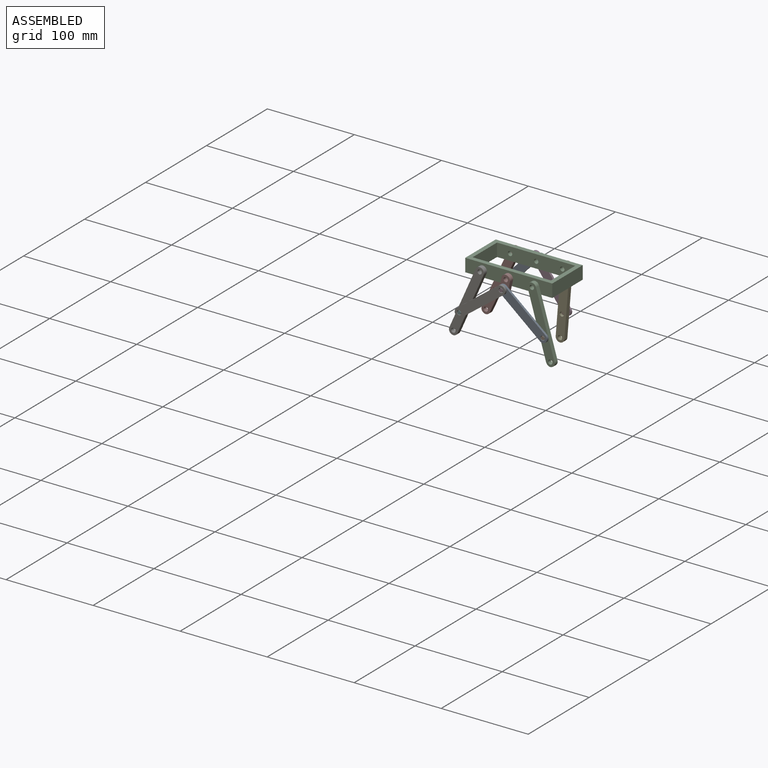
[diagram: assembled view]
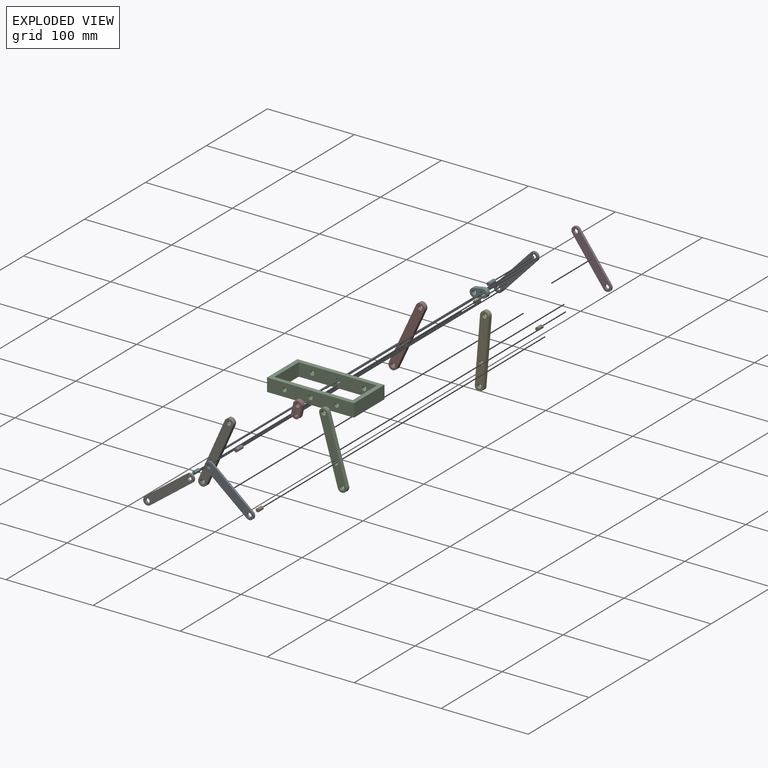
[diagram: exploded view]
GUIDED TOUR — MATED ASSEMBLY (Onshape document f0c2cba16f7986491a749965, AutoMate assembly f0c2cba16f7986491a749965_29a1b851d8dd8d99d053bbe2_6ed01dc44b8c0630210e8784_default)

This assembly has 17 components, labeled P0..P16 below (a component is one placed occurrence of a part; the same part can appear more than once), held together by 29 mates. A mate is a constraint between two components; its type names the relative motion it leaves free:
  CYLINDRICAL — leaves both rotation about and translation along the listed axis free,
  PARALLEL — keeps the two listed directions parallel,
  PLANAR — leaves sliding in the plane through the listed point (normal = the listed direction) and rotation about that normal free,
  REVOLUTE — leaves rotation about the listed axis free (a hinge).
Axis/direction vectors are unit vectors and 'through' points are millimeter coordinates, both in the assembly's world frame.

MATES
  1. CYLINDRICAL "圓柱 4": P13 <-> P6, axis (0.000, 1.000, 0.000) through (-46.83, -28.82, -48.36) mm
  2. REVOLUTE "轉動 3": P2 <-> P10, axis (0.000, -1.000, 0.000) through (33.30, -22.57, -2.59) mm
  3. CYLINDRICAL "圓柱 2": P3 <-> P6, axis (0.000, 1.000, 0.000) through (1.18, -27.57, -12.36) mm
  4. REVOLUTE "轉動 10": P15 <-> P2, axis (0.000, -1.000, 0.000) through (-26.70, 27.43, -2.59) mm
  5. CYLINDRICAL "圓柱 5": P11 <-> P16, axis (0.000, -1.000, 0.000) through (-6.56, 34.93, -4.27) mm
  6. CYLINDRICAL "圓柱 3": P1 <-> P8, axis (0.000, 1.000, 0.000) through (47.46, -26.32, -50.54) mm
  7. REVOLUTE "轉動 8": P16 <-> P5, axis (0.000, -1.000, 0.000) through (-6.56, 32.43, -4.27) mm
  8. REVOLUTE "轉動 11": P4 <-> P2, axis (0.000, -1.000, 0.000) through (33.30, 27.43, -2.59) mm
  9. CYLINDRICAL "圓柱 8": P12 <-> P16, axis (0.000, 1.000, 0.000) through (-47.64, 31.18, -47.99) mm
  10. PARALLEL "平行 1": P3 <-> P6, direction (0.000, -1.000, 0.000) through (1.18, -32.57, -12.36) mm
  11. REVOLUTE "轉動 12": P15 <-> P16, axis (0.000, 1.000, 0.000) through (-47.64, 32.43, -47.99) mm
  12. PLANAR "平面 1": P11 <-> P16, direction (0.000, -1.000, 0.000) through (-6.56, 34.93, -4.27) mm
  13. CYLINDRICAL "圓柱 1": P6 <-> P14, axis (0.000, 1.000, 0.000) through (-46.83, -30.07, -48.36) mm
  14. CYLINDRICAL "圓柱 7": P0 <-> P11, axis (0.000, 1.000, 0.000) through (-6.56, 32.43, -4.27) mm
  15. REVOLUTE "轉動 2": P7 <-> P8, axis (0.000, -1.000, 0.000) through (1.18, -27.57, -12.36) mm
  16. PLANAR "平面 5": P13 <-> P6, direction (0.000, 1.000, 0.000) through (-46.83, -32.57, -48.36) mm
  17. PLANAR "平面 2": P0 <-> P11, direction (0.000, 1.000, 0.000) through (-6.56, 37.43, -4.27) mm
  18. PARALLEL "平行 3": P13 <-> P6, direction (0.000, -1.000, 0.000) through (-46.83, -32.57, -48.36) mm
  19. REVOLUTE "轉動 4": P10 <-> P8, axis (0.000, -1.000, 0.000) through (47.46, -27.57, -50.54) mm
  20. REVOLUTE "轉動 6": P6 <-> P8, axis (0.000, 1.000, 0.000) through (1.18, -30.07, -12.36) mm
  21. PLANAR "平面 3": P12 <-> P16, direction (0.000, 1.000, 0.000) through (-47.64, 34.93, -47.99) mm
  22. PARALLEL "平行 2": P1 <-> P8, direction (0.000, -1.000, 0.000) through (47.46, -30.07, -50.54) mm
  23. PLANAR "平面 4": P9 <-> P11, direction (0.000, 1.000, 0.000) through (29.23, 37.43, -52.42) mm
  24. REVOLUTE "轉動 1": P7 <-> P2, axis (0.000, 1.000, 0.000) through (3.30, -22.57, -2.59) mm
  25. PARALLEL "平行 4": P11 <-> P16, direction (0.000, -1.000, 0.000) through (-6.56, 34.93, -4.27) mm
  26. CYLINDRICAL "圓柱 9": P9 <-> P11, axis (0.000, 1.000, 0.000) through (29.23, 33.68, -52.42) mm
  27. REVOLUTE "轉動 7": P5 <-> P2, axis (0.000, -1.000, 0.000) through (3.30, 27.43, -2.59) mm
  28. REVOLUTE "轉動 5": P2 <-> P14, axis (0.000, -1.000, 0.000) through (-26.70, -22.57, -2.59) mm
  29. CYLINDRICAL "圓柱 6": P11 <-> P4, axis (0.000, 1.000, 0.000) through (29.23, 34.93, -52.42) mm

ASSEMBLY ORDER
  1. P16 — the base component [order verified]
  2. P11 [order verified]
  3. P0 [order verified]
  4. P5 [order verified]
  5. P12 [order verified]
  6. P4 [order verified]
  7. P15 [order verified]
  8. P2 [order verified]
  9. P7 [order verified]
  10. P10 [order verified]
  11. P14 [order verified]
  12. P8 [order verified]
  13. P1 [order verified]
  14. P6 [order verified]
  15. P3 [order verified]
  16. P13 [order verified]
  17. P9 [order verified]
Order-tag legend:
  [order verified] — this step's position reverses a verified removal order: the component was checked to insert without passing through the ones already placed.

Of the 17 components, 1 carries the full construction recipe — the FeatureScript program that regenerates the part's solid from scratch; the rest are supplied as boundary geometry only.
Because this assembly has more than 12 components, the tour below covers the 12 most significant ones individually (every recipe-attached component first, then the largest by part volume), in assembly order; the remaining 5 are summarized together in a grouped section at the end.
Each toured component is shown spotlighted twice — in the assembled view, then in the exploded view, where a leader line traces a displaced component back to its assembled socket (saturated green if recipe-attached, orange if geometry-only; every other component desaturated gray) — followed by its recipe or geometry summary and the mates that hold it.
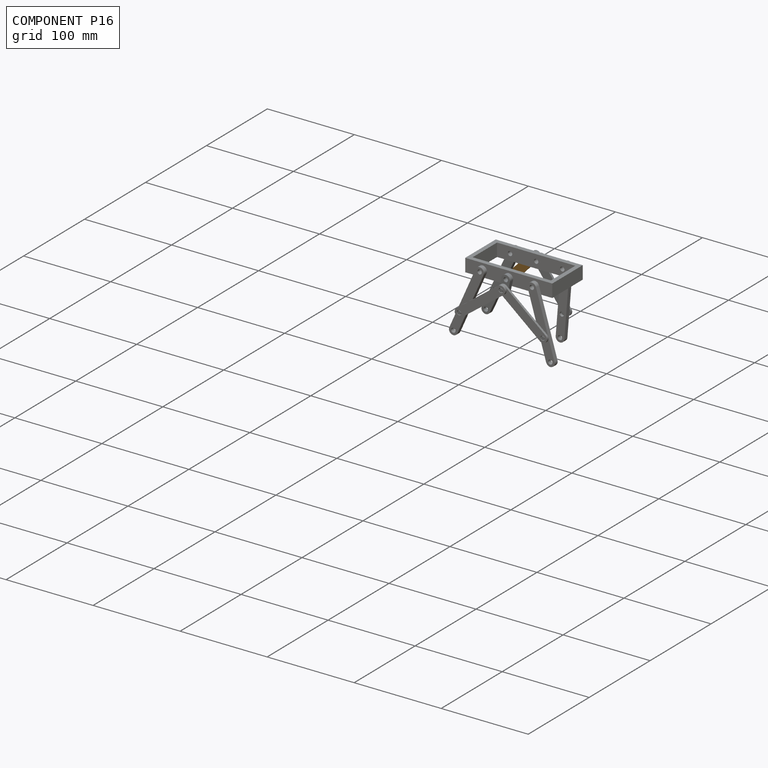
[diagram: component P16 — assembled]
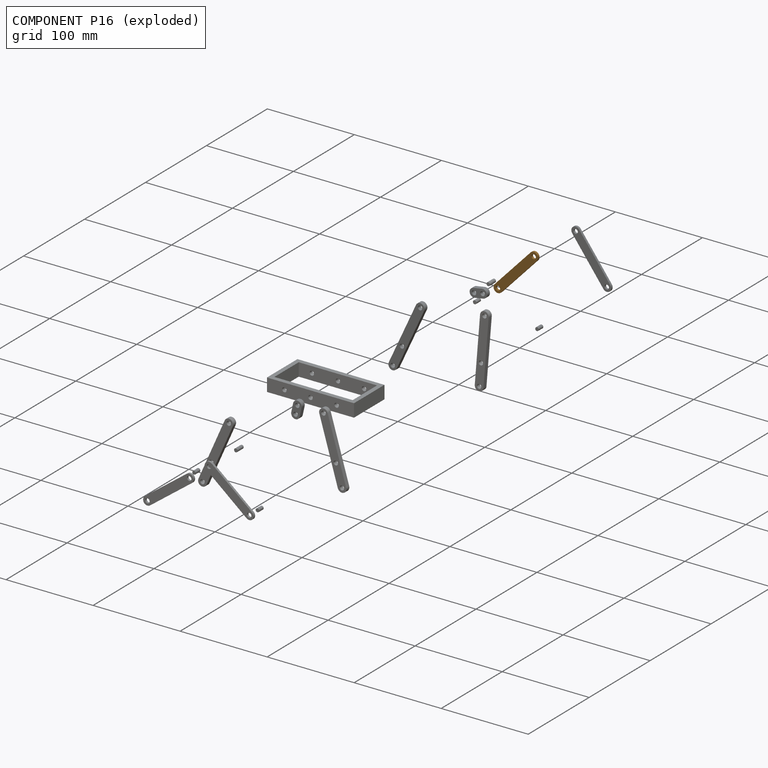
[diagram: component P16 — exploded]
COMPONENT P16 — geometry summary (no construction recipe available for this part):
  bounding box: 70.0 x 10.0 x 2.5 mm
  B-rep topology: 1 solid, 8 faces, 36 edges
  volume: 1598 mm^3 (91% of its bounding box)
  symmetry: 2-fold rotationally symmetric about the x axis; 2-fold rotationally symmetric about the y axis; 2-fold rotationally symmetric about the z axis; mirror-symmetric across its x mid-plane, y mid-plane, z mid-plane
Held by: CYLINDRICAL mate "圓柱 5" to P11; REVOLUTE mate "轉動 8" to P5; CYLINDRICAL mate "圓柱 8" to P12; REVOLUTE mate "轉動 12" to P15; PLANAR mate "平面 1" to P11; PLANAR mate "平面 3" to P12; PARALLEL mate "平行 4" to P11.
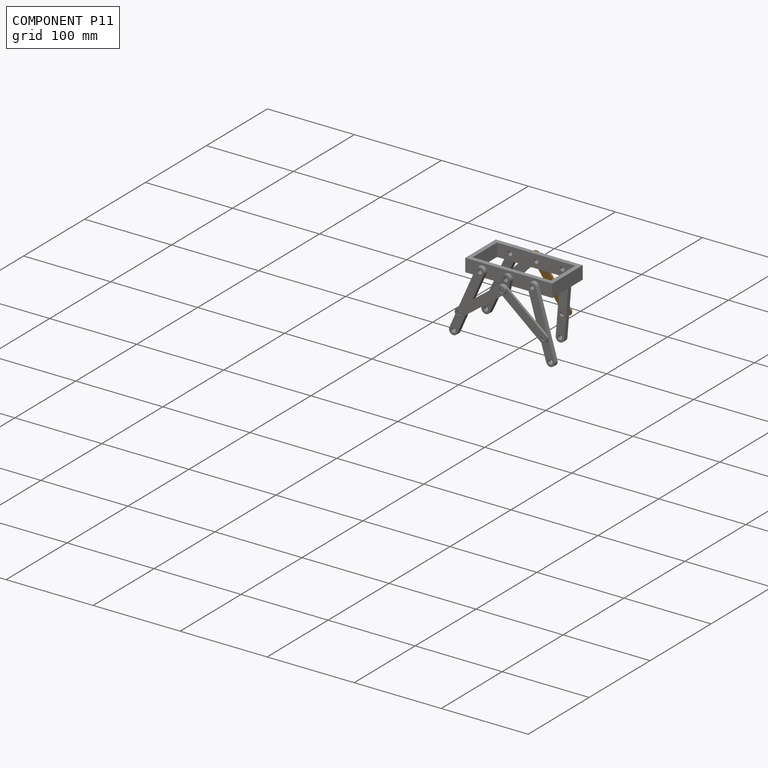
[diagram: component P11 — assembled]
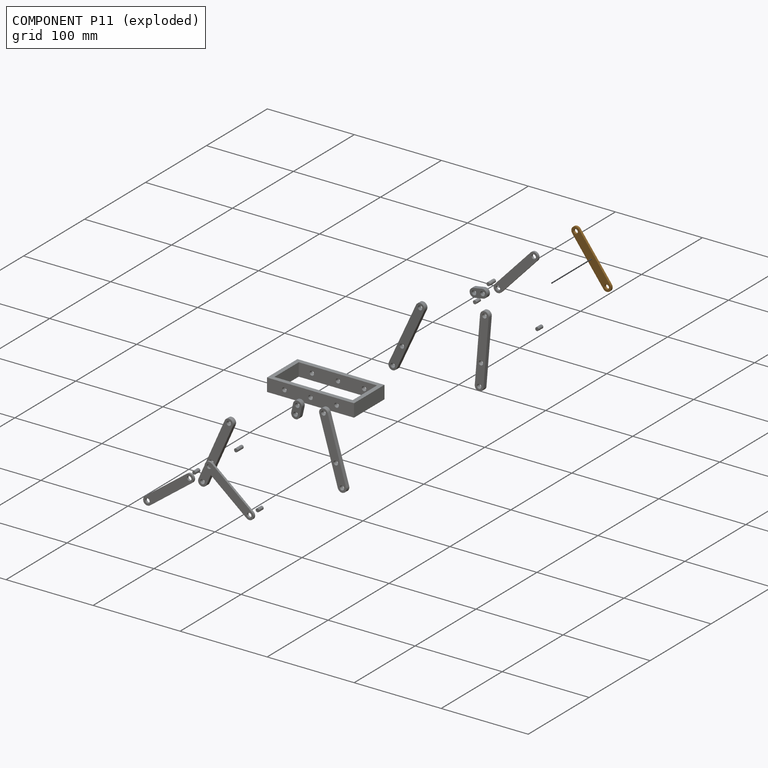
[diagram: component P11 — exploded]
COMPONENT P11 — geometry summary (no construction recipe available for this part):
  bounding box: 70.0 x 10.0 x 2.5 mm
  B-rep topology: 1 solid, 8 faces, 36 edges
  volume: 1598 mm^3 (91% of its bounding box)
  symmetry: 2-fold rotationally symmetric about the x axis; 2-fold rotationally symmetric about the y axis; 2-fold rotationally symmetric about the z axis; mirror-symmetric across its x mid-plane, y mid-plane, z mid-plane
Held by: CYLINDRICAL mate "圓柱 5" to P16; PLANAR mate "平面 1" to P16; CYLINDRICAL mate "圓柱 7" to P0; PLANAR mate "平面 2" to P0; PLANAR mate "平面 4" to P9; PARALLEL mate "平行 4" to P16; CYLINDRICAL mate "圓柱 9" to P9; CYLINDRICAL mate "圓柱 6" to P4.
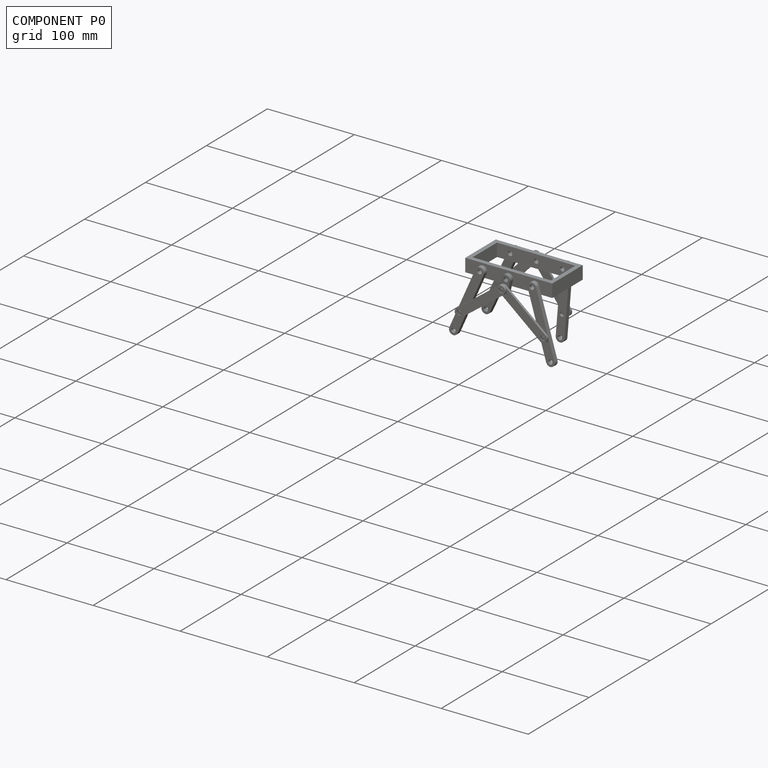
[diagram: component P0 — assembled]
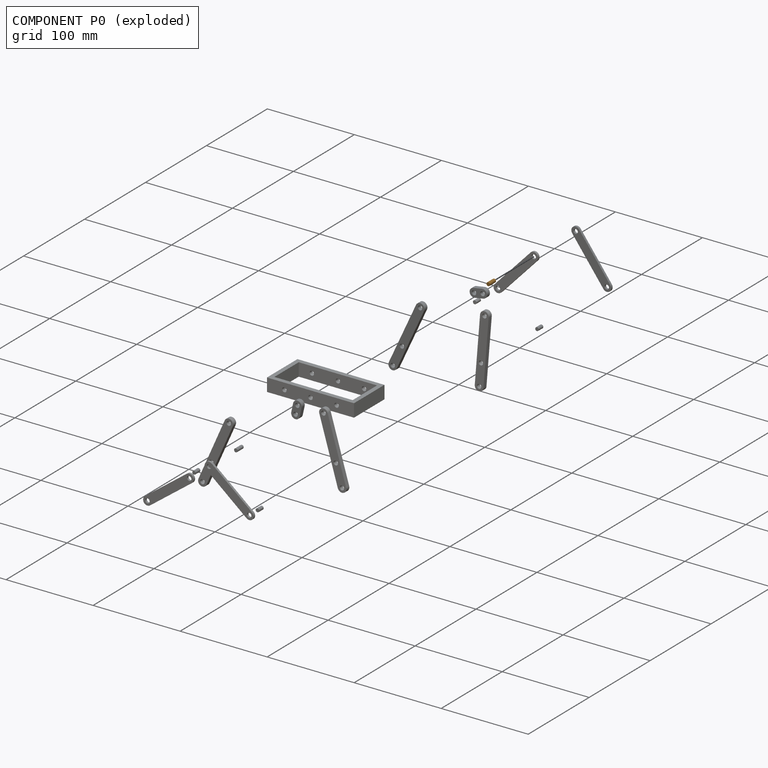
[diagram: component P0 — exploded]
COMPONENT P0 — geometry summary (no construction recipe available for this part):
  bounding box: 10.0 x 4.0 x 4.0 mm
  B-rep topology: 1 solid, 3 faces, 6 edges
  volume: 126 mm^3 (79% of its bounding box)
  symmetry: 2-fold rotationally symmetric about the x axis; revolution-symmetric about the y axis through its bounding-box center; 2-fold rotationally symmetric about the z axis; mirror-symmetric across its x mid-plane, y mid-plane, z mid-plane
Held by: CYLINDRICAL mate "圓柱 7" to P11; PLANAR mate "平面 2" to P11.
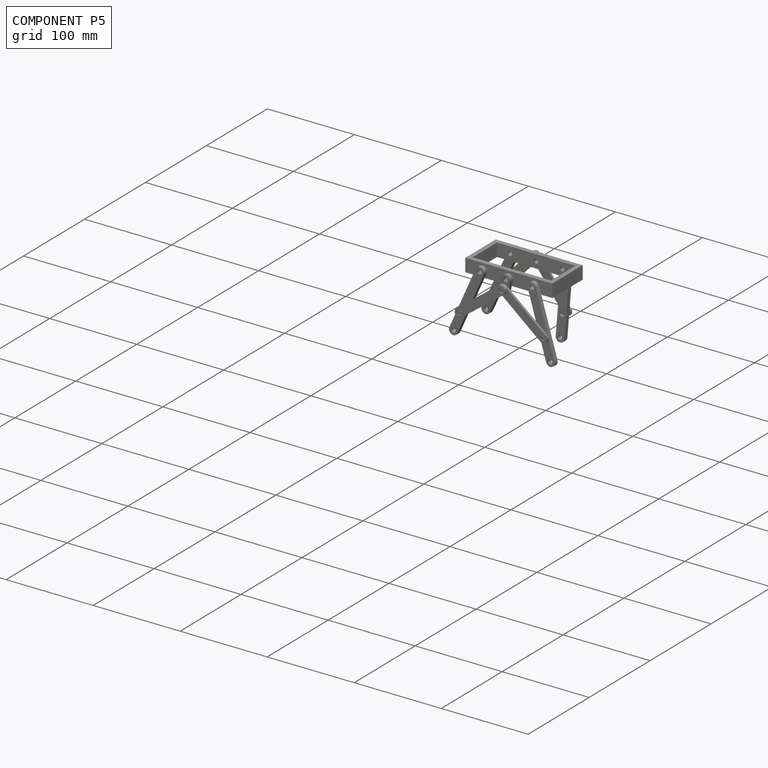
[diagram: component P5 — assembled]
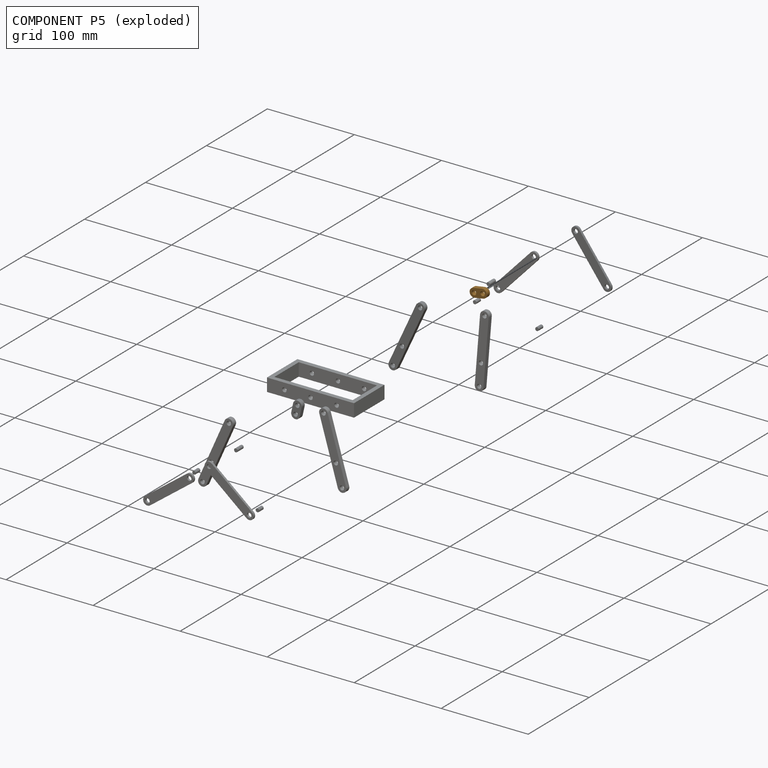
[diagram: component P5 — exploded]
COMPONENT P5 — geometry summary (no construction recipe available for this part):
  bounding box: 20.0 x 10.0 x 5.0 mm
  B-rep topology: 1 solid, 8 faces, 36 edges
  volume: 696 mm^3 (70% of its bounding box)
  symmetry: 2-fold rotationally symmetric about the x axis; 2-fold rotationally symmetric about the y axis; 2-fold rotationally symmetric about the z axis; mirror-symmetric across its x mid-plane, y mid-plane, z mid-plane
Held by: REVOLUTE mate "轉動 8" to P16; REVOLUTE mate "轉動 7" to P2.
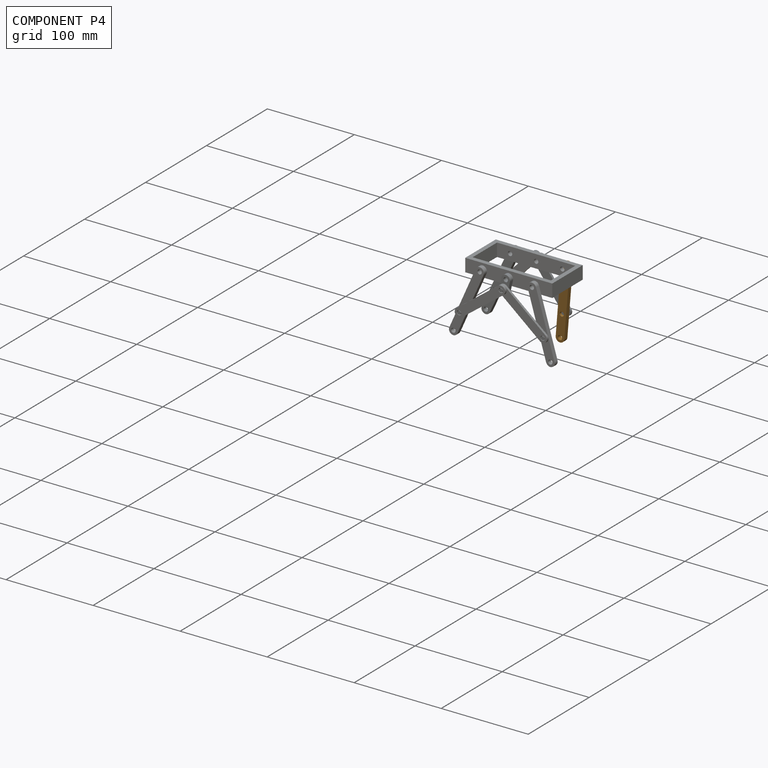
[diagram: component P4 — assembled]
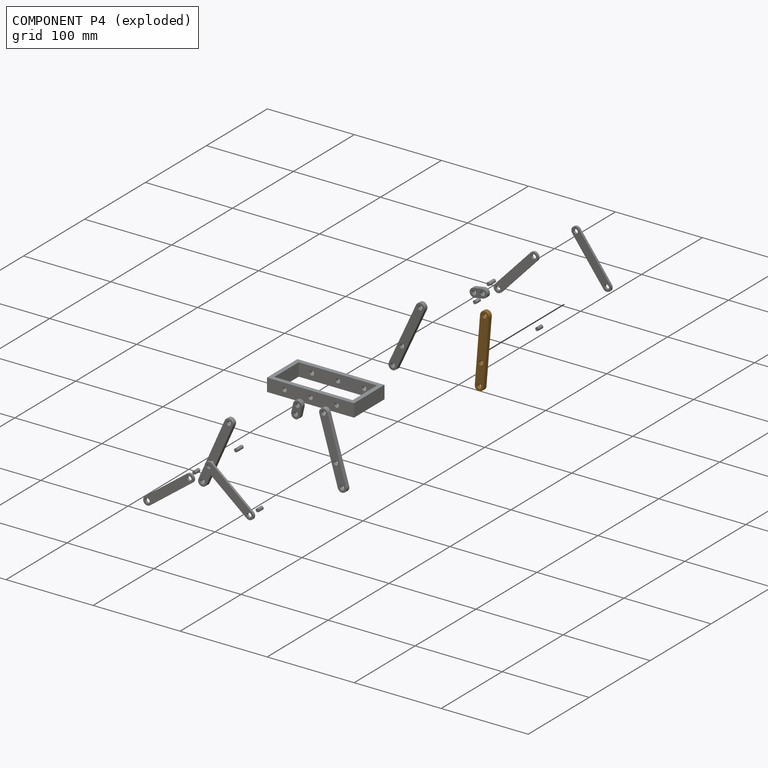
[diagram: component P4 — exploded]
COMPONENT P4 — geometry summary (no construction recipe available for this part):
  bounding box: 85.0 x 10.0 x 5.0 mm
  B-rep topology: 1 solid, 9 faces, 42 edges
  volume: 3848 mm^3 (91% of its bounding box)
  symmetry: 2-fold rotationally symmetric about the z axis; mirror-symmetric across its x mid-plane, y mid-plane
Held by: REVOLUTE mate "轉動 11" to P2; CYLINDRICAL mate "圓柱 6" to P11.
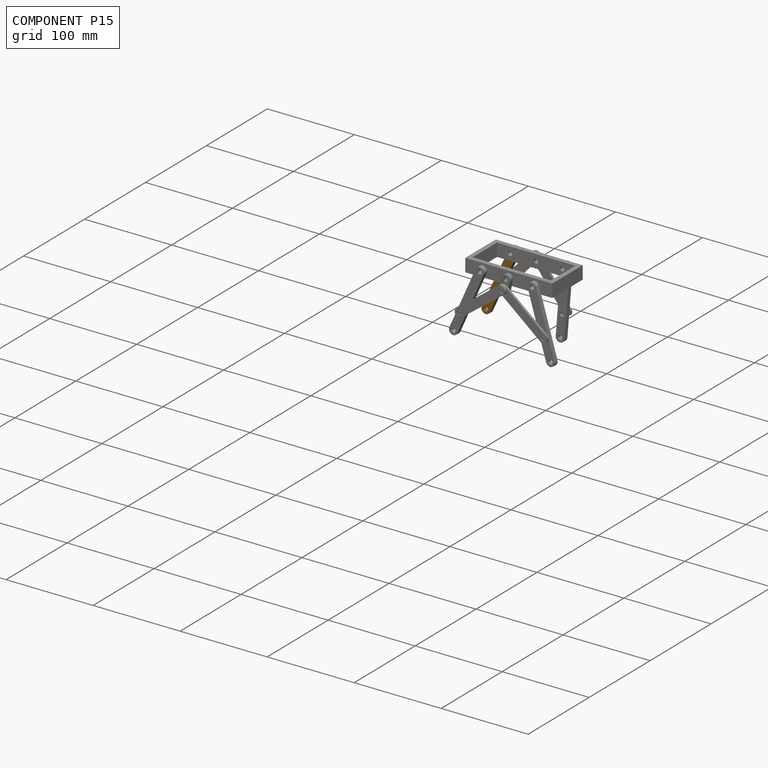
[diagram: component P15 — assembled]
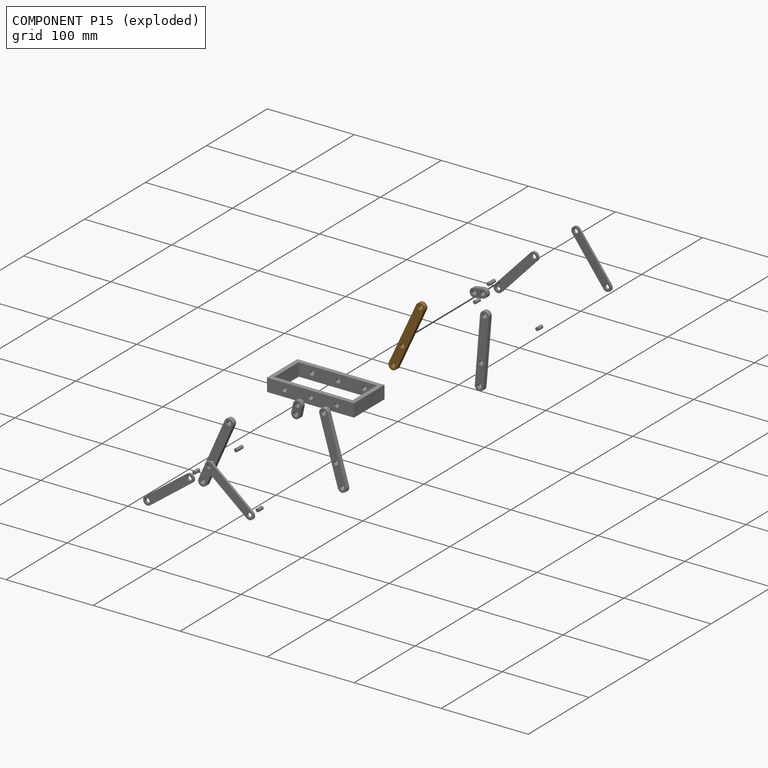
[diagram: component P15 — exploded]
COMPONENT P15 — geometry summary (no construction recipe available for this part):
  bounding box: 85.0 x 10.0 x 5.0 mm
  B-rep topology: 1 solid, 9 faces, 42 edges
  volume: 3848 mm^3 (91% of its bounding box)
  symmetry: 2-fold rotationally symmetric about the z axis; mirror-symmetric across its x mid-plane, y mid-plane
Held by: REVOLUTE mate "轉動 10" to P2; REVOLUTE mate "轉動 12" to P16.
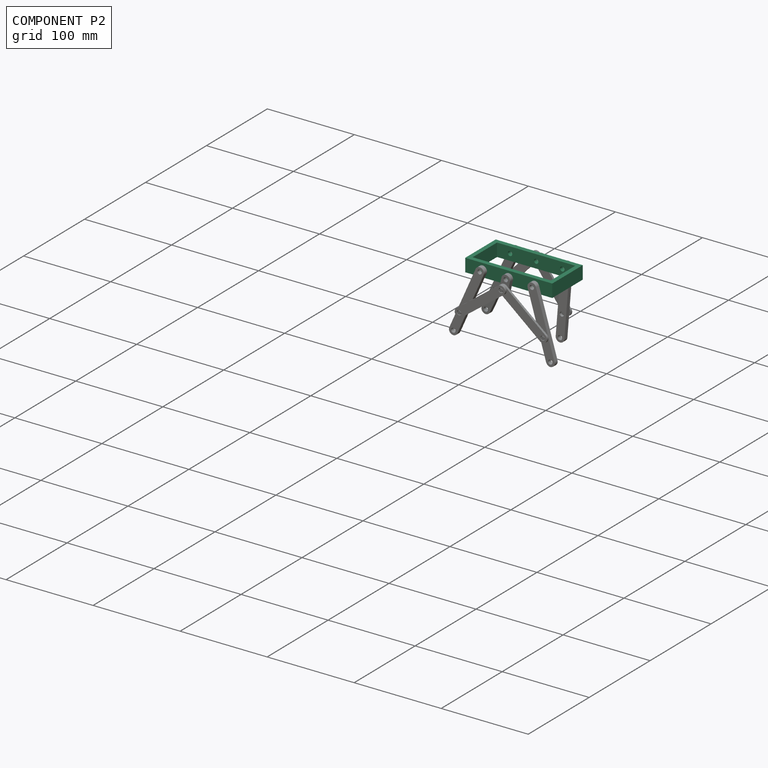
[diagram: component P2 — assembled]
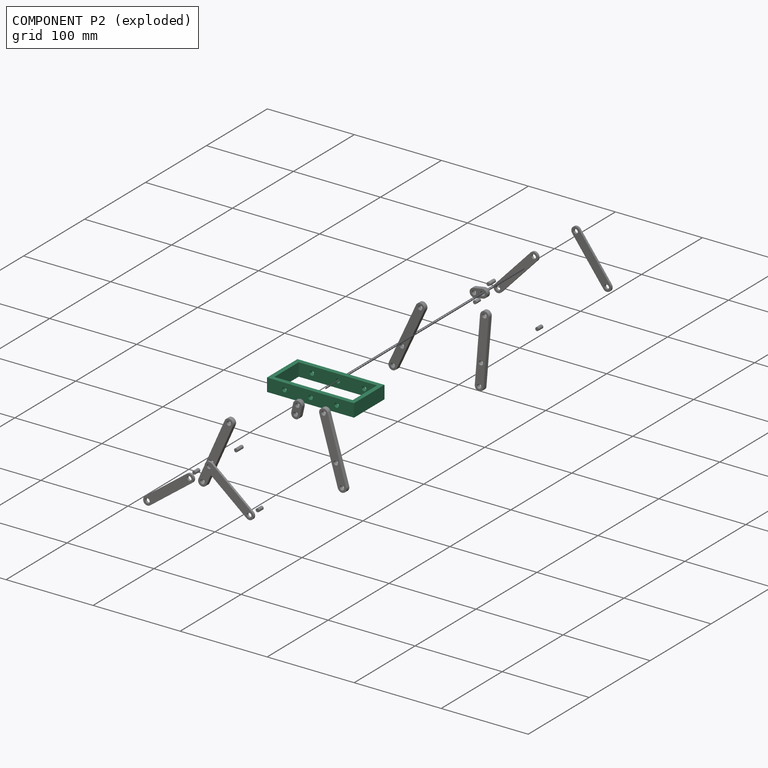
[diagram: component P2 — exploded]
COMPONENT P2 — recipe-attached (CADFS 00717499, mesh-verified: the recipe's output STEP matches this component's geometry to below the mesh-comparison resolution (tessellation chordal tolerance ~0.169 mm)).
Held by: REVOLUTE mate "轉動 3" to P10; REVOLUTE mate "轉動 10" to P15; REVOLUTE mate "轉動 11" to P4; REVOLUTE mate "轉動 1" to P7; REVOLUTE mate "轉動 7" to P5; REVOLUTE mate "轉動 5" to P14.
Construction recipe (FeatureScript — the CAD program that rebuilds this solid; sketch coordinates are in the units given by the * unit suffixes, e.g. mm):

FeatureScript 1576;
import(path : "onshape/std/geometry.fs", version : "1576.0");
import(path : "onshape/std/common.fs", version : "1576.0");
const mm = millimeter;
const VERTEX = EntityType.VERTEX;
const EDGE = EntityType.EDGE;
const FACE = EntityType.FACE;
const BODY = EntityType.BODY;
function v(x, y){return vector(x, y);}
function OD(order){return orderDisambiguation(order);}
function OSD(set){return originalSetDisambiguation(set);}
function TD(topology){return topologyDisambiguation(topology);}
function TDD(query){return trueDependencyDisambiguation(query);}
function sQuery(a, b, c) {return sketchEntityQuery(a, b, c);}

annotation { "Feature Type Name" : "Feature", "Feature Type Description" : "" }
export const myFeature = defineFeature(function(context is Context, id is Id, definition is map)
    precondition{}
    {
        {
            var Q0;
            Q0=qCreatedBy(makeId("Top.planeOp"),FACE);
            var sketch = newSketch(context, id + "F0", { "sketchPlane" : qUnion([Q0])});
            skLineSegment(sketch, "E0.bottom", {"start": v(-50, 25) * mm, "end": v(50, 25) * mm});
            skLineSegment(sketch, "E0.top", {"start": v(-50, -25) * mm, "end": v(50, -25) * mm});
            skLineSegment(sketch, "E0.left", {"start": v(-50, 25) * mm, "end": v(-50, -25) * mm});
            skLineSegment(sketch, "E0.right", {"start": v(50, 25) * mm, "end": v(50, -25) * mm});
            skPoint(sketch, "E0.middle", {"position": v(0, 0) * mm});
            skLineSegment(sketch, "E1.bottom", {"start": v(-45, 20) * mm, "end": v(45, 20) * mm});
            skLineSegment(sketch, "E1.top", {"start": v(-45, -20) * mm, "end": v(45, -20) * mm});
            skLineSegment(sketch, "E1.left", {"start": v(-45, 20) * mm, "end": v(-45, -20) * mm});
            skLineSegment(sketch, "E1.right", {"start": v(45, 20) * mm, "end": v(45, -20) * mm});
            skSolve(sketch);
        }
        {
            var Q0;
            Q0 = qSketchRegion(id + "F0", true);
            extrude(context, id + "F1", {"entities" : qUnion([Q0]), "depth" : 15 * mm, "offsetDistance" : 25 * mm, "symmetric" : true});
        }
        {
            var Q0;
            Q0=qCreatedBy(makeId("Front.planeOp"),FACE);
            var sketch = newSketch(context, id + "F2", { "sketchPlane" : qUnion([Q0])});
            skCircle(sketch, "E2", {"center": v(0, 0) * mm, "radius": 2.5 * mm});
            skCircle(sketch, "E3", {"center": v(-30, 0) * mm, "radius": 2.5 * mm});
            skCircle(sketch, "E4", {"center": v(30, 0) * mm, "radius": 2.5 * mm});
            skLineSegment(sketch, "E5", {"start": v(0, 7.5) * mm, "end": v(0, -7.5) * mm, "construction": true});
            skSolve(sketch);
        }
        {
            var Q0;
            Q0 = qSketchRegion(id + "F2", true);
            extrude(context, id + "F3", {"entities" : qUnion([Q0]), "operationType" : NewBodyOperationType.REMOVE, "oppositeDirection" : true, "depth" : 50 * mm, "offsetDistance" : 25 * mm, "symmetric" : true});
        }
    });
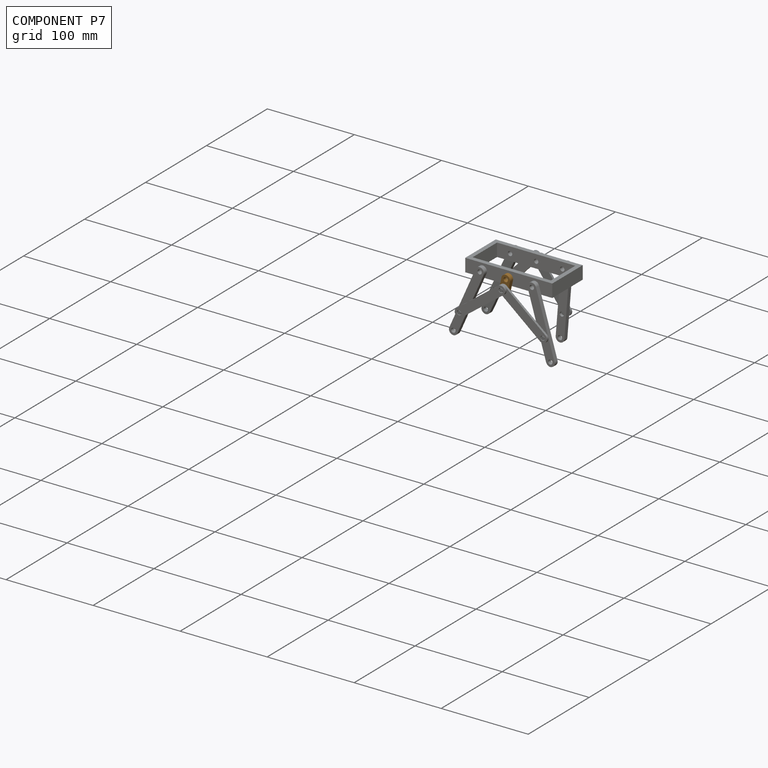
[diagram: component P7 — assembled]
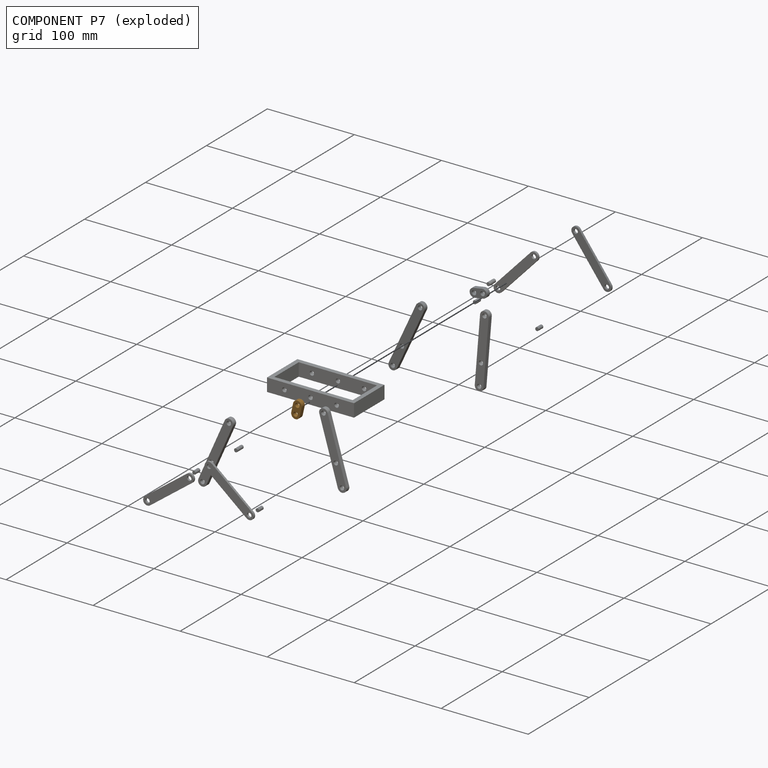
[diagram: component P7 — exploded]
COMPONENT P7 — geometry summary (no construction recipe available for this part):
  bounding box: 20.0 x 10.0 x 5.0 mm
  B-rep topology: 1 solid, 8 faces, 36 edges
  volume: 696 mm^3 (70% of its bounding box)
  symmetry: 2-fold rotationally symmetric about the x axis; 2-fold rotationally symmetric about the y axis; 2-fold rotationally symmetric about the z axis; mirror-symmetric across its x mid-plane, y mid-plane, z mid-plane
Held by: REVOLUTE mate "轉動 2" to P8; REVOLUTE mate "轉動 1" to P2.
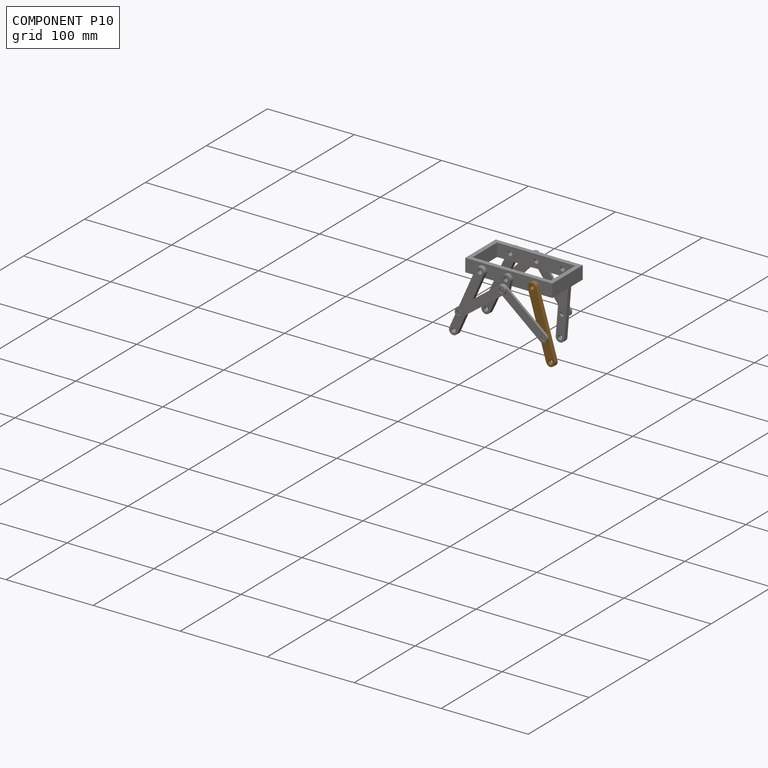
[diagram: component P10 — assembled]
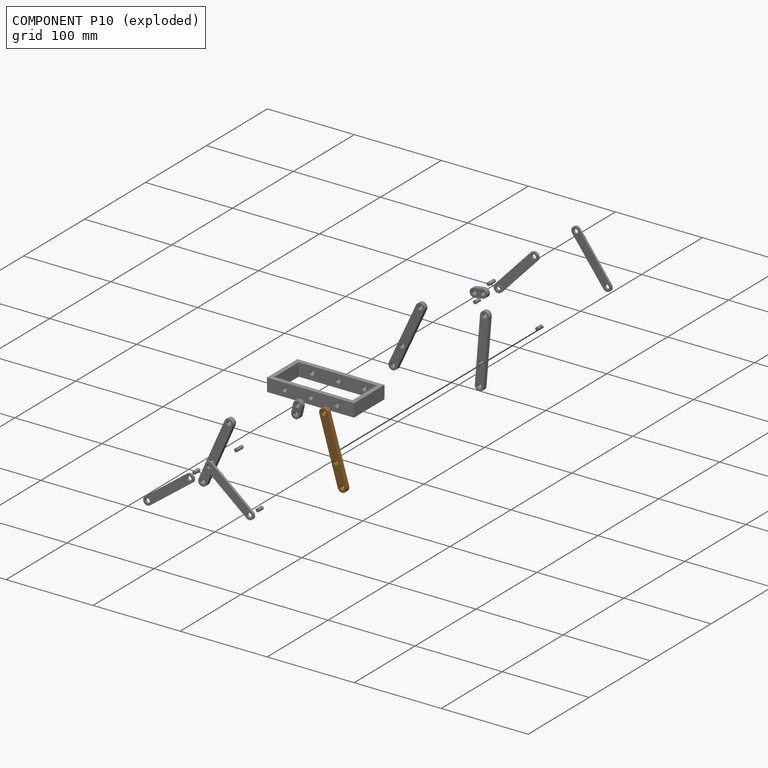
[diagram: component P10 — exploded]
COMPONENT P10 — geometry summary (no construction recipe available for this part):
  bounding box: 85.0 x 10.0 x 5.0 mm
  B-rep topology: 1 solid, 9 faces, 42 edges
  volume: 3848 mm^3 (91% of its bounding box)
  symmetry: 2-fold rotationally symmetric about the z axis; mirror-symmetric across its x mid-plane, y mid-plane
Held by: REVOLUTE mate "轉動 3" to P2; REVOLUTE mate "轉動 4" to P8.
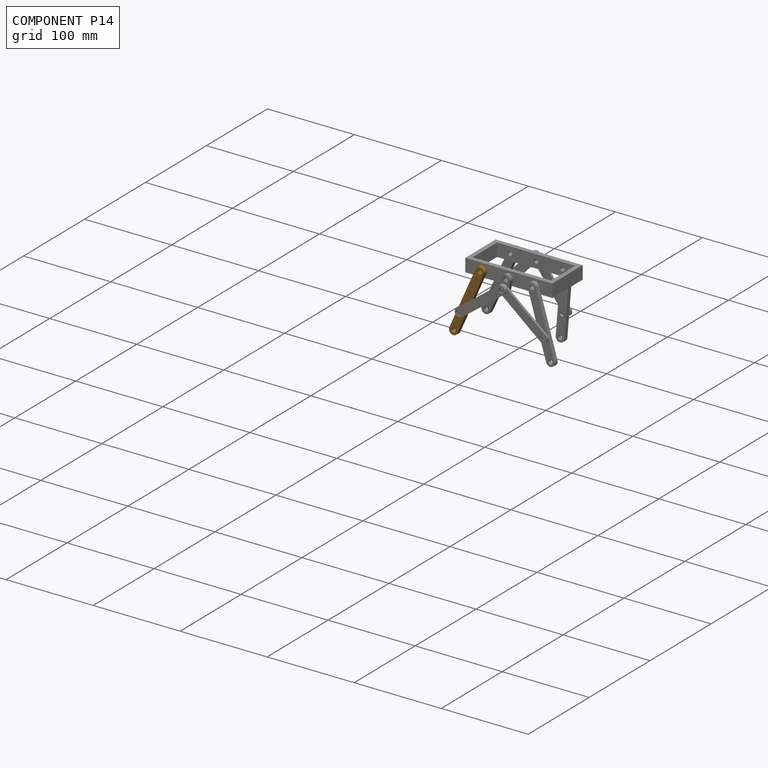
[diagram: component P14 — assembled]
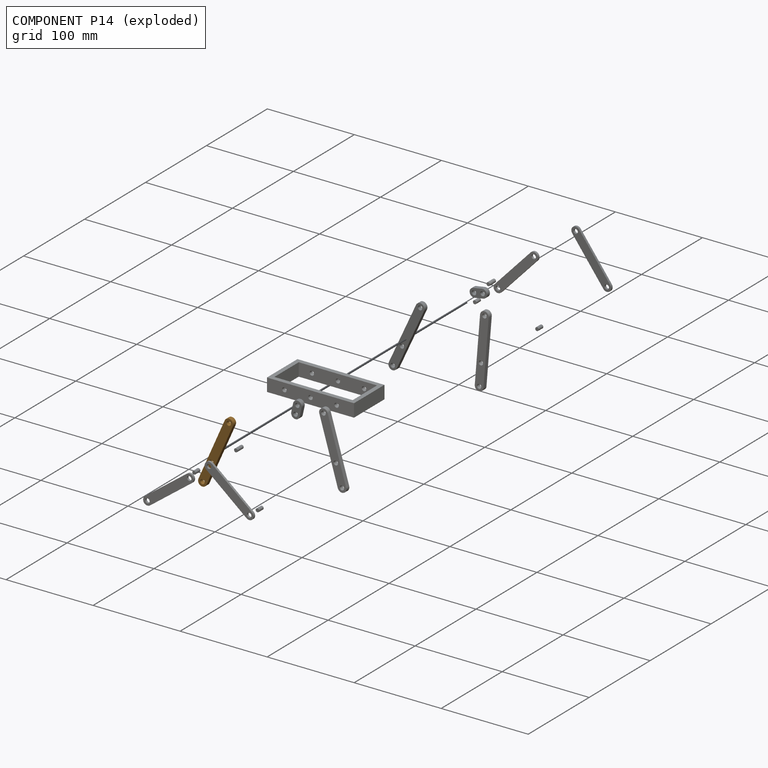
[diagram: component P14 — exploded]
COMPONENT P14 — geometry summary (no construction recipe available for this part):
  bounding box: 85.0 x 10.0 x 5.0 mm
  B-rep topology: 1 solid, 9 faces, 42 edges
  volume: 3848 mm^3 (91% of its bounding box)
  symmetry: 2-fold rotationally symmetric about the z axis; mirror-symmetric across its x mid-plane, y mid-plane
Held by: CYLINDRICAL mate "圓柱 1" to P6; REVOLUTE mate "轉動 5" to P2.
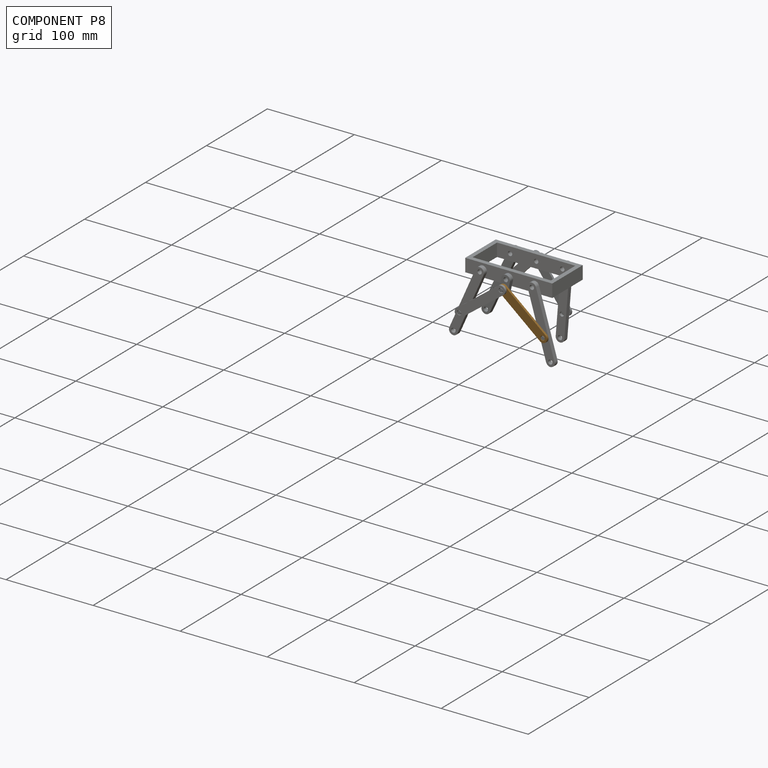
[diagram: component P8 — assembled]
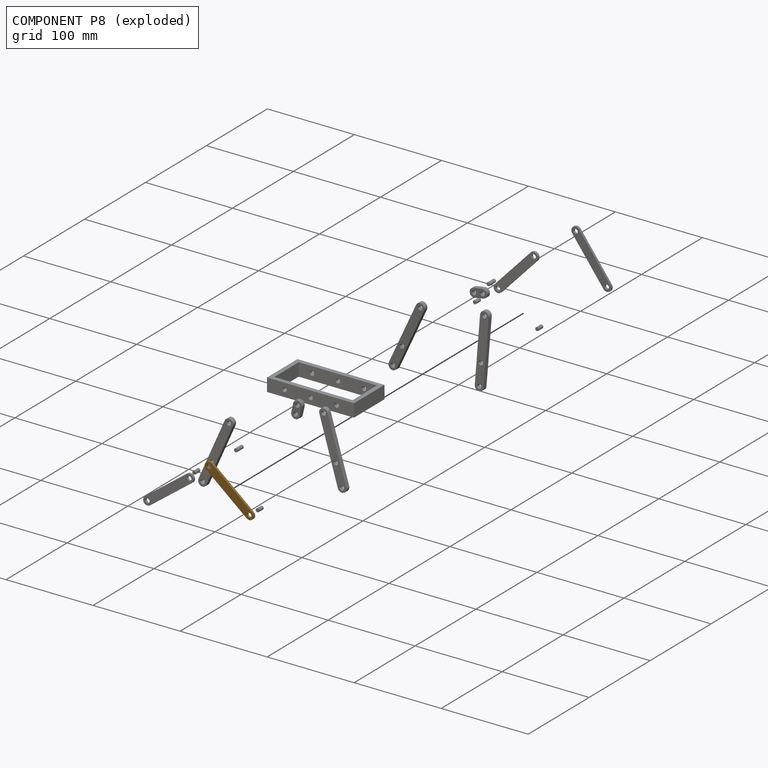
[diagram: component P8 — exploded]
COMPONENT P8 — geometry summary (no construction recipe available for this part):
  bounding box: 70.0 x 10.0 x 2.5 mm
  B-rep topology: 1 solid, 8 faces, 36 edges
  volume: 1598 mm^3 (91% of its bounding box)
  symmetry: 2-fold rotationally symmetric about the x axis; 2-fold rotationally symmetric about the y axis; 2-fold rotationally symmetric about the z axis; mirror-symmetric across its x mid-plane, y mid-plane, z mid-plane
Held by: CYLINDRICAL mate "圓柱 3" to P1; REVOLUTE mate "轉動 2" to P7; REVOLUTE mate "轉動 4" to P10; REVOLUTE mate "轉動 6" to P6; PARALLEL mate "平行 2" to P1.
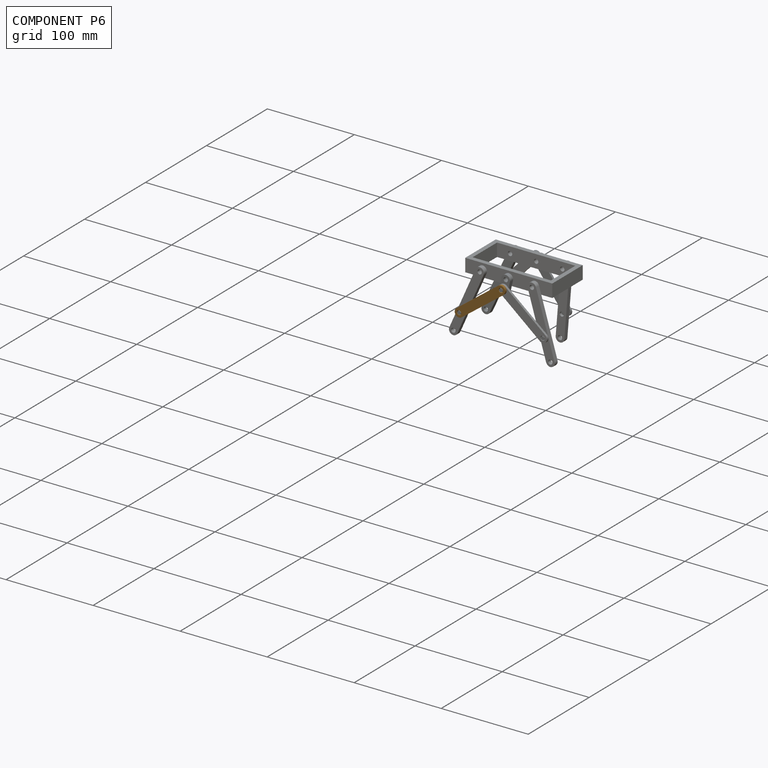
[diagram: component P6 — assembled]
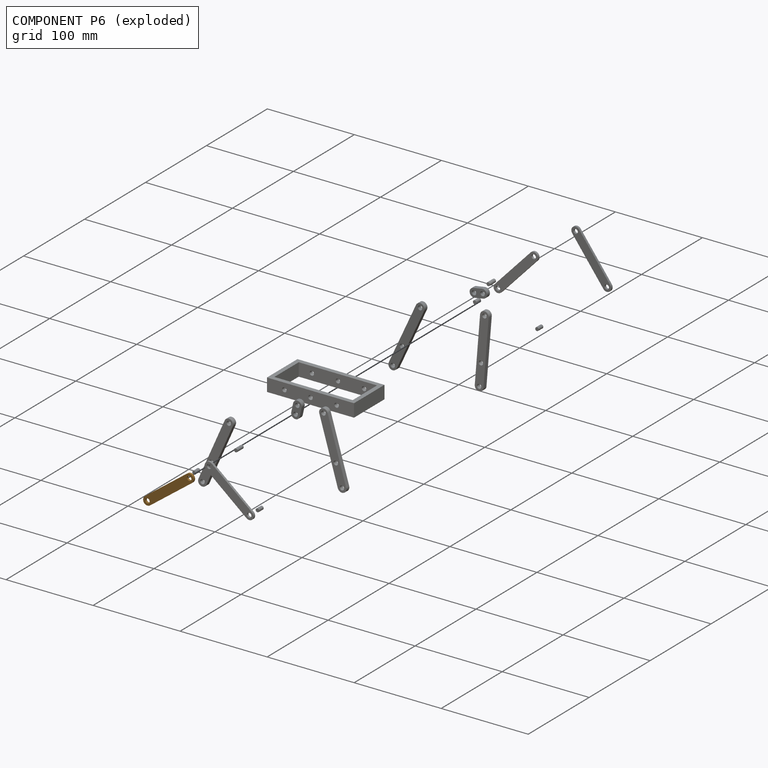
[diagram: component P6 — exploded]
COMPONENT P6 — geometry summary (no construction recipe available for this part):
  bounding box: 70.0 x 10.0 x 2.5 mm
  B-rep topology: 1 solid, 8 faces, 36 edges
  volume: 1598 mm^3 (91% of its bounding box)
  symmetry: 2-fold rotationally symmetric about the x axis; 2-fold rotationally symmetric about the y axis; 2-fold rotationally symmetric about the z axis; mirror-symmetric across its x mid-plane, y mid-plane, z mid-plane
Held by: CYLINDRICAL mate "圓柱 4" to P13; CYLINDRICAL mate "圓柱 2" to P3; PARALLEL mate "平行 1" to P3; CYLINDRICAL mate "圓柱 1" to P14; PLANAR mate "平面 5" to P13; PARALLEL mate "平行 3" to P13; REVOLUTE mate "轉動 6" to P8.
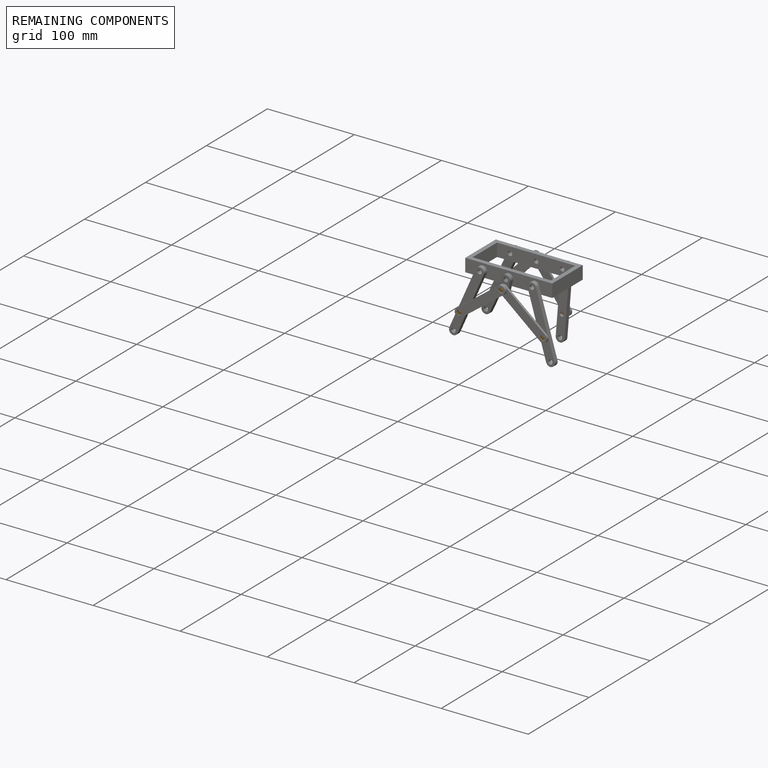
[diagram: remaining components — assembled]
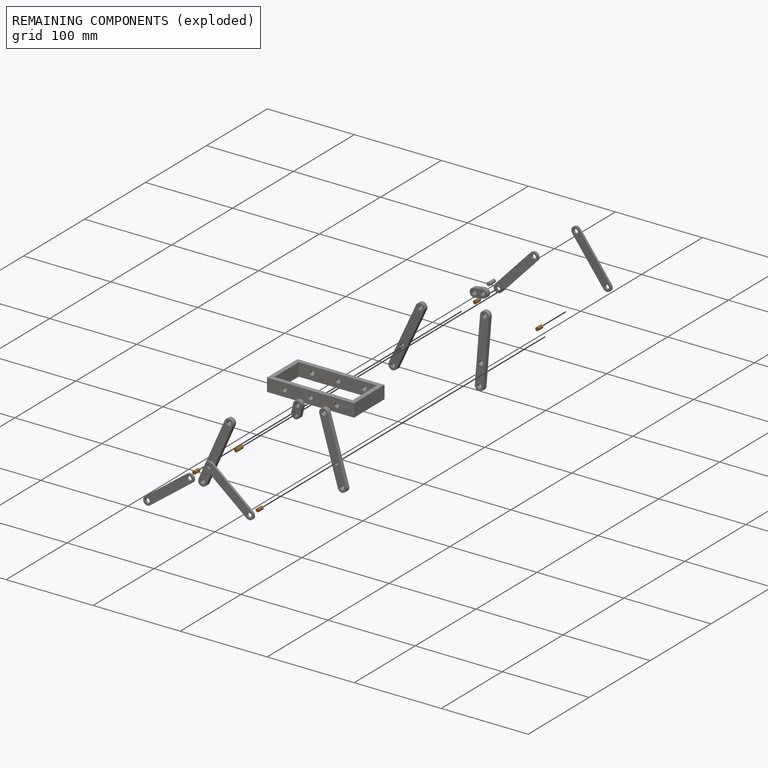
[diagram: remaining components — exploded]
REMAINING COMPONENTS (grouped) — the 5 components below fall outside the per-component tour by the significance rule stated above; both spotlight views highlight the whole group.
  P12: bounding box 7.5 x 4.0 x 4.0 mm, volume 94 mm^3. Held by: CYLINDRICAL mate "圓柱 8" to P16; PLANAR mate "平面 3" to P16.
  P1: bounding box 7.5 x 4.0 x 4.0 mm, volume 94 mm^3. Held by: CYLINDRICAL mate "圓柱 3" to P8; PARALLEL mate "平行 2" to P8.
  P3: bounding box 10.0 x 4.0 x 4.0 mm, volume 126 mm^3. Held by: CYLINDRICAL mate "圓柱 2" to P6; PARALLEL mate "平行 1" to P6.
  P13: bounding box 7.5 x 4.0 x 4.0 mm, volume 94 mm^3. Held by: CYLINDRICAL mate "圓柱 4" to P6; PLANAR mate "平面 5" to P6; PARALLEL mate "平行 3" to P6.
  P9: bounding box 7.5 x 4.0 x 4.0 mm, volume 94 mm^3. Held by: PLANAR mate "平面 4" to P11; CYLINDRICAL mate "圓柱 9" to P11.
PROVENANCE & LICENSES
Assembly (occurrences, transforms, mates, per-part STEP geometry): AutoMate dataset, Zenodo record 7776208, CC0.
Construction recipes: CADFS (HuggingFace VladPyatov/CADFS, CC-BY-4.0, layered over the ABC dataset), FeatureScript reconstruction programs keyed by ABC model id.
Join: ABC meta listings map ABC model id -> Onshape documentId; within a shared document, parts are matched by geometric signature (bounding-box dims + volume at 0.1% relative tolerance, exact B-rep face/solid counts).
Verification: 1 of this assembly's 17 components carries a recipe attachment, and every attachment is mesh-verified: the CADFS STEP and the AutoMate member STEP were compared as meshes in their shared local frame (symmetric sampled-point-to-mesh distance); worst across the 1 attachment: below the mesh-comparison resolution (tessellation chordal tolerance ~0.169 mm) on a 113 mm part.
Renders: orthographic iso camera (az 35 / el 25); the floor grid conveys scale (grid pitch printed in each image; no ruler). In the exploded view each component is displaced by its stored offset vector: the offsets alone carry the explosion direction (mate normal/axis signs are not orientation cues and do not encode it), and separation distances are assigned per mate-chain, not proportionally to assembly-order depth.
